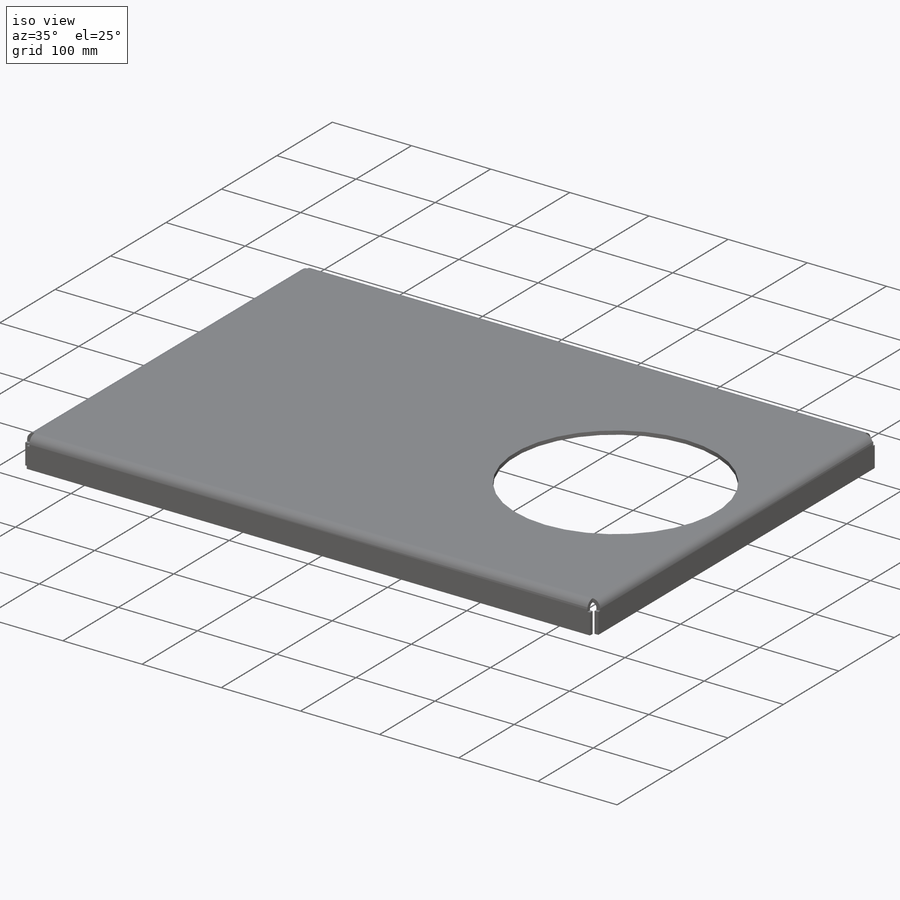
[diagram: iso view]
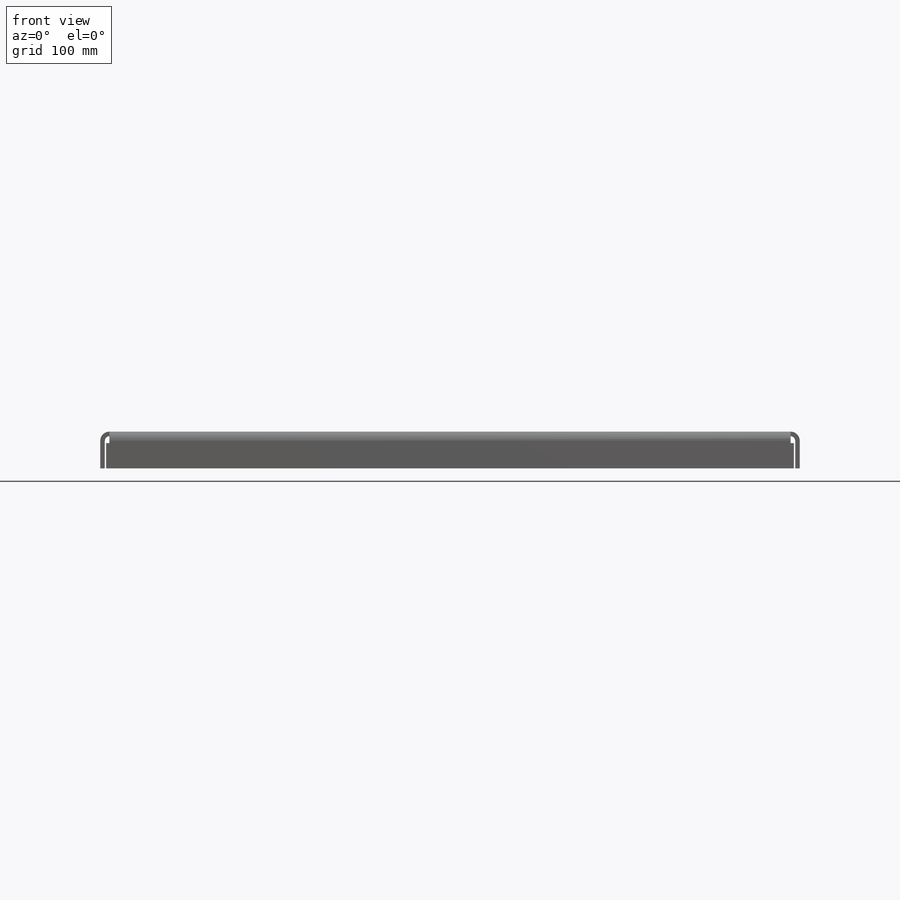
[diagram: front view]
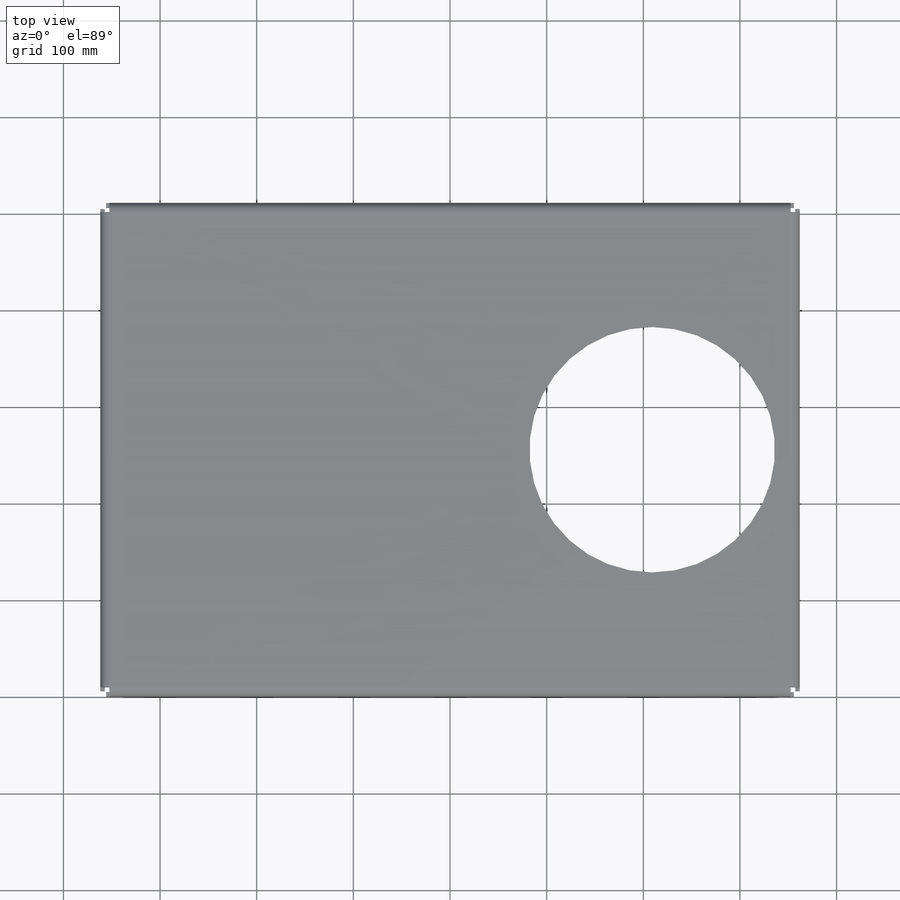
[diagram: top view]
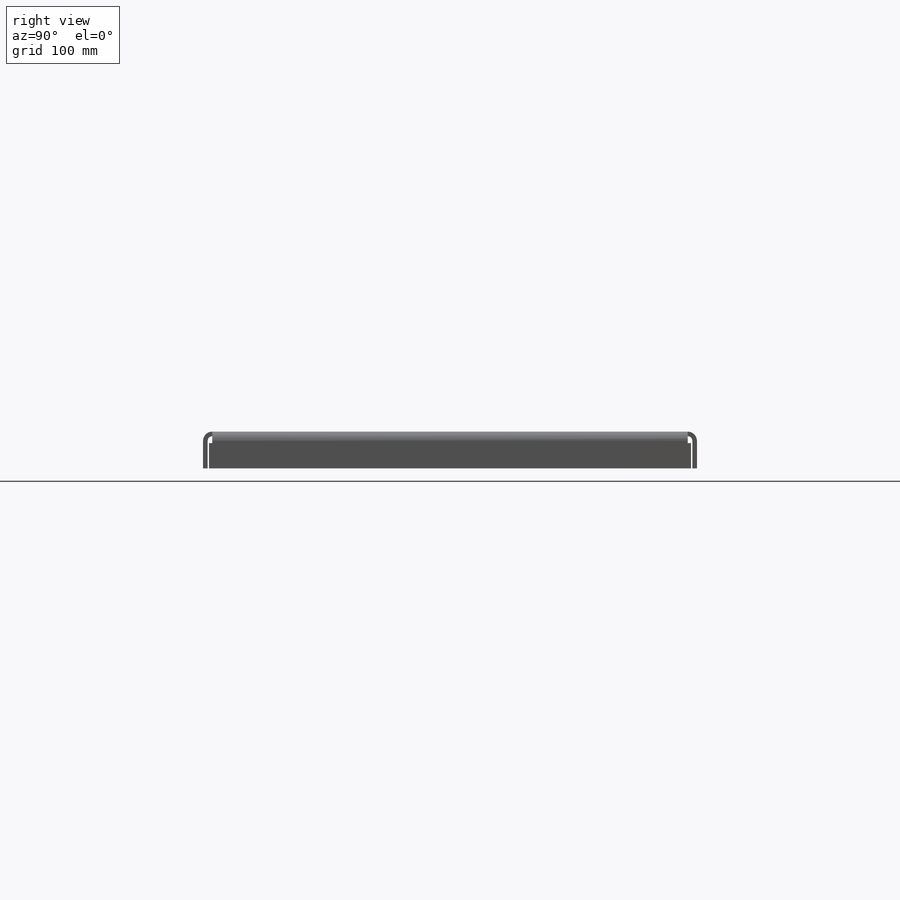
[diagram: right view]
SOLIDWORKS PART (.sldprt)
format: sldprt  version: not decoded by parser v0  size: 372,736 bytes
history: native  units: mm
features: sketch x9, extrude x2, sheet_metal_op x2, material x1, shell x1, cut_extrude x1 + 8 further entries (+12 scaffold rows collapsed; 4 parser-record rows omitted)
feature tree (40):
  scaffold x12  (default folders/planes/origin — collapsed)
  material  "6061-T6 (SS)"
  sketch  "Sketch1"  dims[c1.D1=365.0mm c1.D2=863.6mm c2.D1=723.9mm c2.D2=511.05mm c2.D3=4.7625mm c3.D1=4.7625mm]
  extrude  "Boss-Extrude3"  Depth=38.1mm
  shell  "Shell1"  Thickness=4.7625mm SharpBend2=0 SharpBend3=0 SharpBend4=0
  parser-record x4  (decoder bookkeeping rows leaked as tree rows — omitted from the tree; the rows remain in map.json)
  sketch  "Sketch2"
  sketch  "Sketch3"  dims[D1=33.02mm]
  cut_extrude  "Cut-Extrude1"  Depth=88.138mm
  sketch  "Bend-Lines1"
  sketch  "Bounding-Box1"
  sheet_metal_op  "Sheet-Metal(4)"
  "Flat-Pattern(4)"
  sketch  "Bend-Lines2"
  sketch  "Bounding-Box2"
  "Flatten-<SharpBend2>1"
  "Flatten-<SharpBend3>1"
  "Flatten-<SharpBend4>1"
  extrude  "Sheet-Metal(6)"  Depth=4.7625mm
  sheet_metal_op  "Flat-Pattern(4)"
  sketch  "Bend-Lines2"
  sketch  "Bounding-Box2"
  "Flatten-<SharpBend1>1"
  "Flatten-<SharpBend2>1"
  "Flatten-<SharpBend3>1"
  "Flatten-<SharpBend4>1"
decode coverage: 6 of 15 modeling features carry decoded parameters; 8 rows unclassified (native names shown)
note: suppression state not decoded; provenance and decode notes live in map.json
